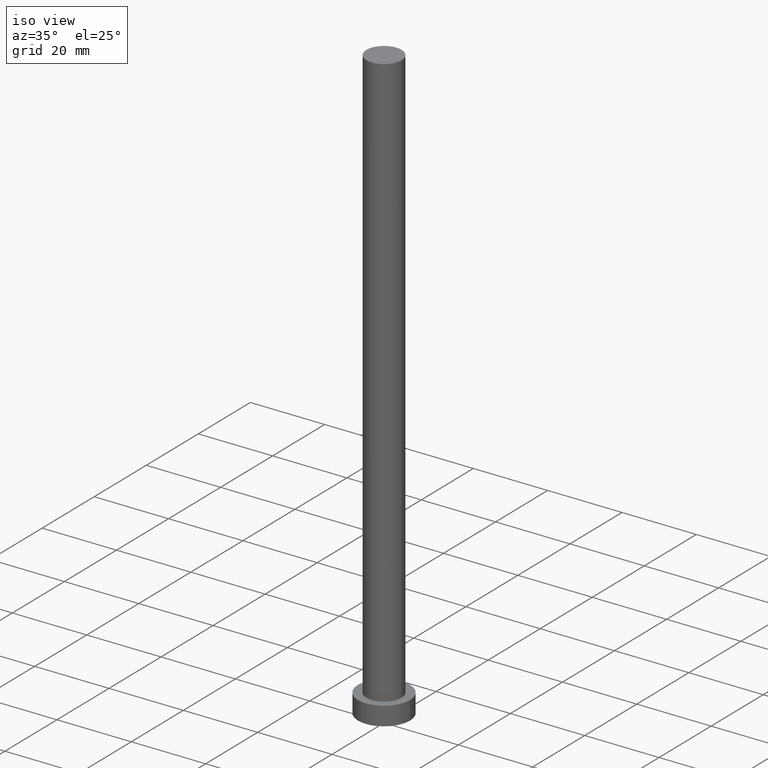
[diagram: clean part render]
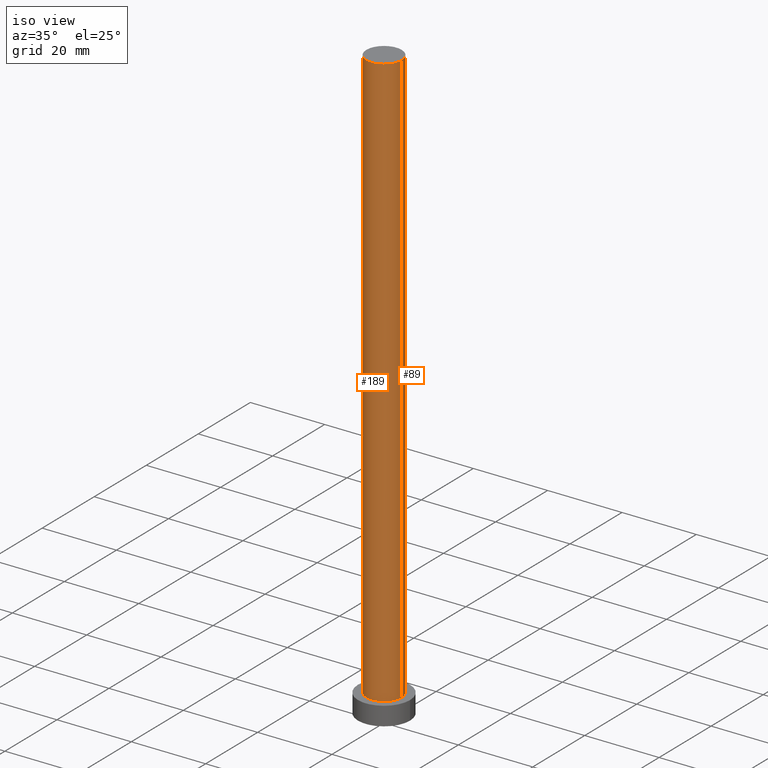
[diagram: same view with one multi-face feature highlighted, each face labeled with its STEP entity id]
A machine part, iso view. The highlighted faces form ONE feature: a constant-radius fillet chain: 2 tangent blend faces with common blend radius 4.75 mm. The faces share edges in the B-rep.
Their STEP definitions:
[1] entity #89 (Cylinder):
#3 = CARTESIAN_POINT ( 'NONE',  ( 0.000000000000000000, 0.000000000000000000, 160.0000000000000000 ) ) ;
#13 = CARTESIAN_POINT ( 'NONE',  ( 4.750000000000000888, 5.817072295949928412E-16, 160.0000000000000000 ) ) ;
#22 = CARTESIAN_POINT ( 'NONE',  ( -4.750000000000000888, 0.000000000000000000, 160.0000000000000000 ) ) ;
#23 = CARTESIAN_POINT ( 'NONE',  ( 4.750000000000000888, 5.817072295949928412E-16, 160.0000000000000000 ) ) ;
#37 = EDGE_CURVE ( 'NONE', #170, #110, #236, .T. ) ;
#44 = AXIS2_PLACEMENT_3D ( 'NONE', #3, #51, #186 ) ;
#49 = DIRECTION ( 'NONE',  ( -0.000000000000000000, -0.000000000000000000, -1.000000000000000000 ) ) ;
#50 = EDGE_CURVE ( 'NONE', #110, #96, #203, .T. ) ;
#51 = DIRECTION ( 'NONE',  ( -0.000000000000000000, -0.000000000000000000, -1.000000000000000000 ) ) ;
#52 = AXIS2_PLACEMENT_3D ( 'NONE', #224, #121, #64 ) ;
#53 = CARTESIAN_POINT ( 'NONE',  ( -4.750000000000000888, 0.000000000000000000, 5.000000000000000000 ) ) ;
#57 = VERTEX_POINT ( 'NONE', #254 ) ;
#64 = DIRECTION ( 'NONE',  ( 1.000000000000000000, 0.000000000000000000, 0.000000000000000000 ) ) ;
#89 = ADVANCED_FACE ( 'NONE', ( #200 ), #209, .T. ) ;
#96 = VERTEX_POINT ( 'NONE', #53 ) ;
#107 = CARTESIAN_POINT ( 'NONE',  ( 0.000000000000000000, 0.000000000000000000, 160.0000000000000000 ) ) ;
#109 = EDGE_CURVE ( 'NONE', #170, #57, #210, .T. ) ;
#110 = VERTEX_POINT ( 'NONE', #147 ) ;
#112 = ORIENTED_EDGE ( 'NONE', *, *, #50, .T. ) ;
#121 = DIRECTION ( 'NONE',  ( 0.000000000000000000, 0.000000000000000000, 1.000000000000000000 ) ) ;
#123 = LINE ( 'NONE', #22, #183 ) ;
#140 = DIRECTION ( 'NONE',  ( -0.000000000000000000, -0.000000000000000000, -1.000000000000000000 ) ) ;
#146 = DIRECTION ( 'NONE',  ( 0.000000000000000000, 0.000000000000000000, 1.000000000000000000 ) ) ;
#147 = CARTESIAN_POINT ( 'NONE',  ( 4.750000000000000888, 5.817072295949928412E-16, 5.000000000000000000 ) ) ;
#150 = ORIENTED_EDGE ( 'NONE', *, *, #174, .F. ) ;
#168 = DIRECTION ( 'NONE',  ( 1.000000000000000000, 0.000000000000000000, 0.000000000000000000 ) ) ;
#170 = VERTEX_POINT ( 'NONE', #23 ) ;
#174 = EDGE_CURVE ( 'NONE', #57, #96, #123, .T. ) ;
#183 = VECTOR ( 'NONE', #49, 1000.000000000000000 ) ;
#186 = DIRECTION ( 'NONE',  ( -1.000000000000000000, 0.000000000000000000, 0.000000000000000000 ) ) ;
#190 = ORIENTED_EDGE ( 'NONE', *, *, #37, .T. ) ;
#200 = FACE_OUTER_BOUND ( 'NONE', #215, .T. ) ;
#203 = CIRCLE ( 'NONE', #52, 4.750000000000000888 ) ;
#209 = CYLINDRICAL_SURFACE ( 'NONE', #44, 4.750000000000000888 ) ;
#210 = CIRCLE ( 'NONE', #238, 4.750000000000000888 ) ;
#215 = EDGE_LOOP ( 'NONE', ( #247, #190, #112, #150 ) ) ;
#224 = CARTESIAN_POINT ( 'NONE',  ( 0.000000000000000000, 0.000000000000000000, 5.000000000000000000 ) ) ;
#236 = LINE ( 'NONE', #13, #251 ) ;
#238 = AXIS2_PLACEMENT_3D ( 'NONE', #107, #146, #168 ) ;
#247 = ORIENTED_EDGE ( 'NONE', *, *, #109, .F. ) ;
#251 = VECTOR ( 'NONE', #140, 1000.000000000000000 ) ;
#254 = CARTESIAN_POINT ( 'NONE',  ( -4.750000000000000888, 0.000000000000000000, 160.0000000000000000 ) ) ;
[2] entity #189 (Cylinder):
#7 = AXIS2_PLACEMENT_3D ( 'NONE', #125, #156, #45 ) ;
#13 = CARTESIAN_POINT ( 'NONE',  ( 4.750000000000000888, 5.817072295949928412E-16, 160.0000000000000000 ) ) ;
#17 = CARTESIAN_POINT ( 'NONE',  ( 0.000000000000000000, 0.000000000000000000, 160.0000000000000000 ) ) ;
#21 = DIRECTION ( 'NONE',  ( -0.000000000000000000, -0.000000000000000000, -1.000000000000000000 ) ) ;
#22 = CARTESIAN_POINT ( 'NONE',  ( -4.750000000000000888, 0.000000000000000000, 160.0000000000000000 ) ) ;
#23 = CARTESIAN_POINT ( 'NONE',  ( 4.750000000000000888, 5.817072295949928412E-16, 160.0000000000000000 ) ) ;
#37 = EDGE_CURVE ( 'NONE', #170, #110, #236, .T. ) ;
#39 = DIRECTION ( 'NONE',  ( 1.000000000000000000, 0.000000000000000000, 0.000000000000000000 ) ) ;
#45 = DIRECTION ( 'NONE',  ( 1.000000000000000000, 0.000000000000000000, 0.000000000000000000 ) ) ;
#49 = DIRECTION ( 'NONE',  ( -0.000000000000000000, -0.000000000000000000, -1.000000000000000000 ) ) ;
#53 = CARTESIAN_POINT ( 'NONE',  ( -4.750000000000000888, 0.000000000000000000, 5.000000000000000000 ) ) ;
#54 = AXIS2_PLACEMENT_3D ( 'NONE', #138, #220, #39 ) ;
#57 = VERTEX_POINT ( 'NONE', #254 ) ;
#96 = VERTEX_POINT ( 'NONE', #53 ) ;
#110 = VERTEX_POINT ( 'NONE', #147 ) ;
#123 = LINE ( 'NONE', #22, #183 ) ;
#125 = CARTESIAN_POINT ( 'NONE',  ( 0.000000000000000000, 0.000000000000000000, 160.0000000000000000 ) ) ;
#128 = AXIS2_PLACEMENT_3D ( 'NONE', #17, #21, #202 ) ;
#138 = CARTESIAN_POINT ( 'NONE',  ( 0.000000000000000000, 0.000000000000000000, 5.000000000000000000 ) ) ;
#140 = DIRECTION ( 'NONE',  ( -0.000000000000000000, -0.000000000000000000, -1.000000000000000000 ) ) ;
#147 = CARTESIAN_POINT ( 'NONE',  ( 4.750000000000000888, 5.817072295949928412E-16, 5.000000000000000000 ) ) ;
#154 = EDGE_CURVE ( 'NONE', #57, #170, #225, .T. ) ;
#155 = ORIENTED_EDGE ( 'NONE', *, *, #37, .F. ) ;
#156 = DIRECTION ( 'NONE',  ( 0.000000000000000000, 0.000000000000000000, 1.000000000000000000 ) ) ;
#157 = CIRCLE ( 'NONE', #54, 4.750000000000000888 ) ;
#170 = VERTEX_POINT ( 'NONE', #23 ) ;
#173 = ORIENTED_EDGE ( 'NONE', *, *, #154, .F. ) ;
#174 = EDGE_CURVE ( 'NONE', #57, #96, #123, .T. ) ;
#183 = VECTOR ( 'NONE', #49, 1000.000000000000000 ) ;
#189 = ADVANCED_FACE ( 'NONE', ( #228 ), #235, .T. ) ;
#191 = ORIENTED_EDGE ( 'NONE', *, *, #174, .T. ) ;
#195 = ORIENTED_EDGE ( 'NONE', *, *, #208, .T. ) ;
#202 = DIRECTION ( 'NONE',  ( -1.000000000000000000, 0.000000000000000000, 0.000000000000000000 ) ) ;
#208 = EDGE_CURVE ( 'NONE', #96, #110, #157, .T. ) ;
#220 = DIRECTION ( 'NONE',  ( 0.000000000000000000, 0.000000000000000000, 1.000000000000000000 ) ) ;
#225 = CIRCLE ( 'NONE', #7, 4.750000000000000888 ) ;
#228 = FACE_OUTER_BOUND ( 'NONE', #252, .T. ) ;
#235 = CYLINDRICAL_SURFACE ( 'NONE', #128, 4.750000000000000888 ) ;
#236 = LINE ( 'NONE', #13, #251 ) ;
#251 = VECTOR ( 'NONE', #140, 1000.000000000000000 ) ;
#252 = EDGE_LOOP ( 'NONE', ( #155, #173, #191, #195 ) ) ;
#254 = CARTESIAN_POINT ( 'NONE',  ( -4.750000000000000888, 0.000000000000000000, 160.0000000000000000 ) ) ;